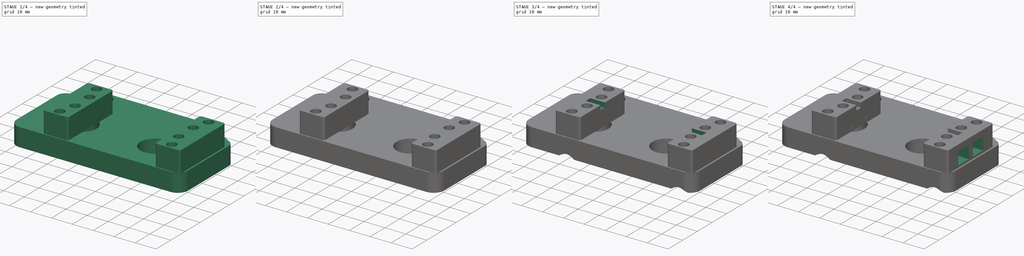
[diagram: build sequence overview — one tinted view per stage of 4, left to right]
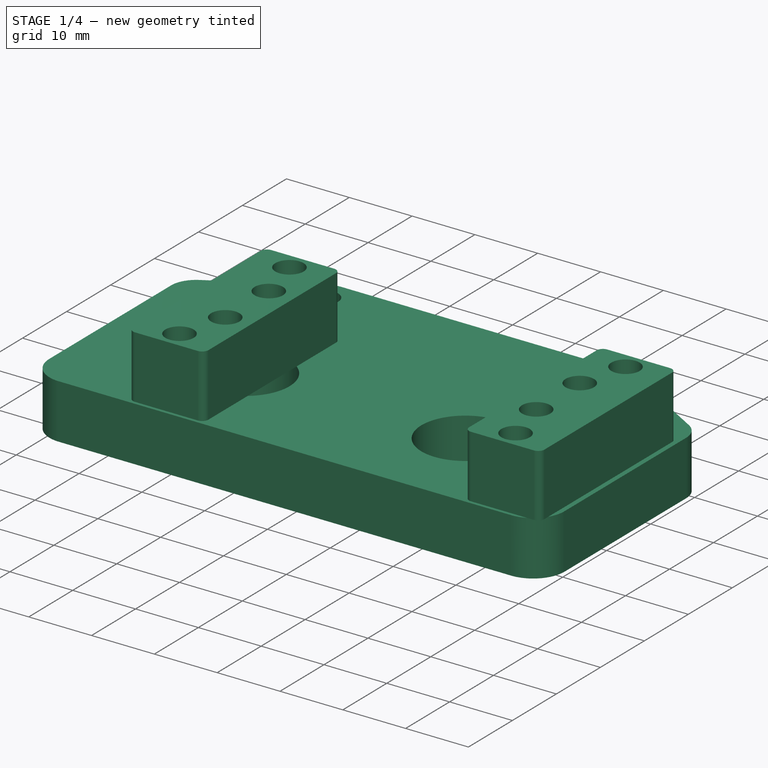
[diagram: stage 1 of 4 — iso view after this stage's code; geometry added in this stage tinted green]
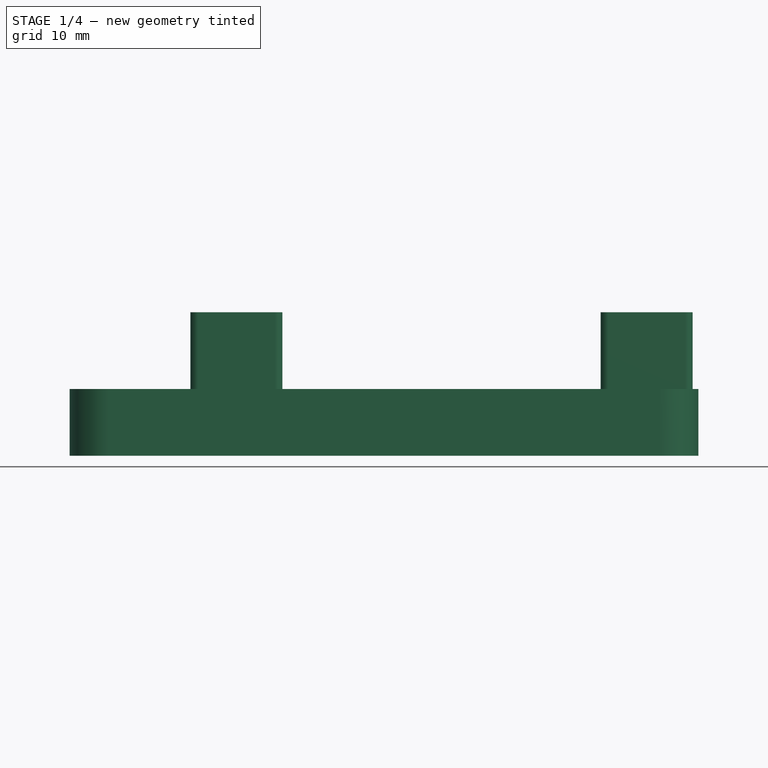
[diagram: stage 1 of 4 — front view after this stage's code; geometry added in this stage tinted green]
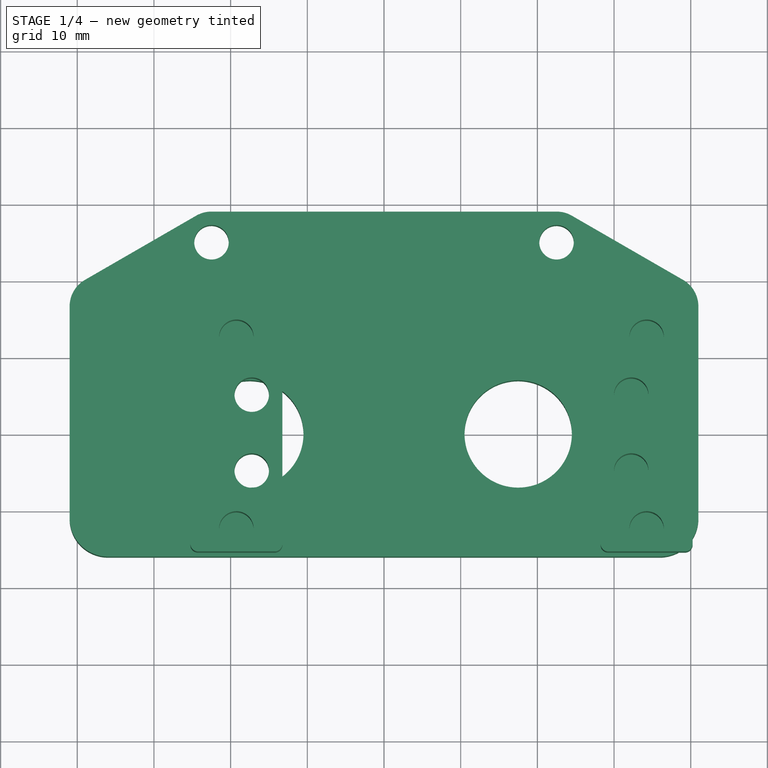
[diagram: stage 1 of 4 — top view after this stage's code; geometry added in this stage tinted green]
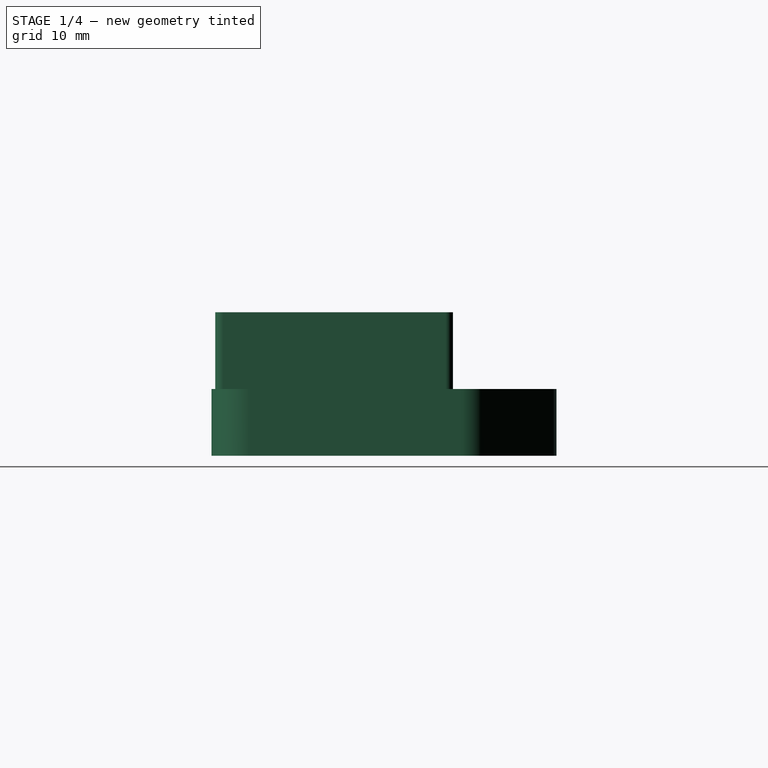
[diagram: stage 1 of 4 — right view after this stage's code; geometry added in this stage tinted green]
FCSTD DOCUMENT  (FreeCAD 1.1R39741 (Git))
Label: claw-base
License: All rights reserved
LicenseURL: https://en.wikipedia.org/wiki/All_rights_reserved
objects: Part::Feature×5, Sketcher::SketchObject×4, PartDesign::Pocket×4, PartDesign::Pad×2, PartDesign::Mirrored×2, PartDesign::CoordinateSystem×1, Part::Compound×1, Part::Scale×1, PartDesign::Hole×1, PartDesign::Plane×1, PartDesign::Body×1, App::Point×1
note: 43 computed .brp shape members not serialized (recipe doc carries the construction recipe); baked Part::Feature solids carry a one-line shape summary decoded from their .brp
EXTERNAL_REF file=variables.FCStd obj=Spreadsheet

FEATURE [Sketcher::SketchObject] Sketch
  ArcFitTolerance = 1e-06
  ExternalTypes = [0]
  FullyConstrained = true
  MakeInternals = false
  MapMode = 5
  expr: Constraints[29] = variables#Spreadsheet.distance_bearing_holes_to_end
  expr: Constraints[35] = variables#Spreadsheet.claw_back_spacer_diameter
  expr: Constraints[36] = <<variables>>#Spreadsheet.claw_back_outer_spacer_holes_wing_angle
  expr: Constraints[4] = <<variables>>#Spreadsheet.claw_pincher_c2c
  expr: Constraints[52] = <<variables>>#Spreadsheet.claw_back_outer_spacer_holes_wing_angle
  sketch-geometry (25):
    g0: LineSegment StartX=41 StartY=-11 StartZ=0 EndX=41 EndY=16.6284 EndZ=0
    g1: GeomPoint X=41 Y=-16 Z=0
    g2: LineSegment [constr] StartX=-17.5 StartY=5.631e-13 StartZ=0 EndX=17.5 EndY=5.631e-13 EndZ=0
    g3: Circle CenterX=-17.5 CenterY=5.631e-13 CenterZ=0 NormalX=0 NormalY=0 NormalZ=1 AngleXU=0 Radius=7
    g4: Circle CenterX=17.5 CenterY=5.631e-13 CenterZ=0 NormalX=0 NormalY=0 NormalZ=1 AngleXU=0 Radius=7
    g5: LineSegment StartX=-39 StartY=20.0925 StartZ=0 EndX=-24.5 EndY=28.4641 EndZ=0
    g6: LineSegment StartX=-22.5 StartY=29 StartZ=0 EndX=22.5 EndY=29 EndZ=0
    g7: LineSegment StartX=24.5 StartY=28.4641 StartZ=0 EndX=39 EndY=20.0925 EndZ=0
    g8: LineSegment [constr] StartX=-22.5 StartY=25 StartZ=0 EndX=22.5 EndY=25 EndZ=0
    g9: GeomPoint [constr] X=-1.358e-13 Y=25 Z=0
    g10: Circle CenterX=-22.5 CenterY=25 CenterZ=0 NormalX=0 NormalY=0 NormalZ=1 AngleXU=0 Radius=2.25
    g11: Circle CenterX=22.5 CenterY=25 CenterZ=0 NormalX=0 NormalY=0 NormalZ=1 AngleXU=0 Radius=2.25
    g12: Circle [constr] CenterX=-22.5 CenterY=25 CenterZ=0 NormalX=0 NormalY=0 NormalZ=1 AngleXU=0 Radius=4
    g13: Circle [constr] CenterX=22.5 CenterY=25 CenterZ=0 NormalX=0 NormalY=0 NormalZ=1 AngleXU=0 Radius=4
    g14: ArcOfCircle CenterX=22.5 CenterY=25 CenterZ=0 NormalX=0 NormalY=0 NormalZ=1 AngleXU=0 Radius=4 StartAngle=1.0472 EndAngle=1.5708
    g15: ArcOfCircle CenterX=37 CenterY=16.6284 CenterZ=0 NormalX=0 NormalY=0 NormalZ=1 AngleXU=0 Radius=4 StartAngle=2.005e-13 EndAngle=1.0472
    g16: ArcOfCircle CenterX=-22.5 CenterY=25 CenterZ=0 NormalX=0 NormalY=0 NormalZ=1 AngleXU=0 Radius=4 StartAngle=1.5708 EndAngle=2.0944
    g17: LineSegment StartX=36 StartY=-16 StartZ=0 EndX=-36 EndY=-16 EndZ=0
    g18: LineSegment StartX=-41 StartY=16.6284 StartZ=0 EndX=-41 EndY=-11 EndZ=0
    g19: ArcOfCircle CenterX=-36 CenterY=-11 CenterZ=0 NormalX=0 NormalY=0 NormalZ=1 AngleXU=0 Radius=5 StartAngle=3.14159 EndAngle=4.71239
    g20: GeomPoint [constr] X=-41 Y=-16 Z=0
    g21: ArcOfCircle CenterX=36 CenterY=-11 CenterZ=0 NormalX=0 NormalY=0 NormalZ=1 AngleXU=0 Radius=5 StartAngle=4.71239 EndAngle=6.28319
    g22: GeomPoint [constr] X=41 Y=-16 Z=0
    g23: ArcOfCircle CenterX=-37 CenterY=16.6284 CenterZ=0 NormalX=0 NormalY=0 NormalZ=1 AngleXU=0 Radius=4 StartAngle=2.0944 EndAngle=3.14159
    g24: GeomPoint [constr] X=-41 Y=18.9378 Z=0
  constraints (58):
    c: Vertical(g0)
    c: Vertical(g22,g1)
    c: Horizontal(g22,g1)
    c: Horizontal(g2)
    c: DistanceX(g2,g2) = 35
    c: Symmetric(g2,g2,g-1)
    c: Diameter(g3) = 14
    c: Coincident(g3,g2)
    c: Coincident(g4,g2)
    c: Equal(g4,g3)
    c: Horizontal(g6)
    c: Horizontal(g8)
    c: DistanceX(g8,g8) = 45
    c: Distance(g2,g8) = 25
    c: Symmetric(g8,g8,g9)
    c: PointOnObject(g9,g-2)
    c: Coincident(g11,g8)
    c: Equal(g10,g11)
    c: Tangent(g6,g12) = 1.5708
    c: Tangent(g5,g12) = 1.5708
    c: Coincident(g13,g8)
    c: Equal(g13,g12)
    c: Equal(g14,g13)
    c: Coincident(g7,g14)
    c: Tangent(g7,g13) = 1.5708
    c: Coincident(g16,g5)
    c: Coincident(g16,g6)
    c: Equal(g16,g12)
    c: Diameter(g10) = 4.5
    c: Distance(g22,g2) = 16
    c: Vertical(g18)
    c: Horizontal(g17)
    c: Coincident(g16,g10)
    c: Coincident(g8,g12)
    c: Equal(g15,g14)
    c: Diameter(g12) = 8
    c: Angle(g5,g8) = 2.61799
    c: PointOnObject(g20,g17)
    c: PointOnObject(g20,g18)
    c: Tangent(g17,g19) = 1.5708
    c: Tangent(g18,g19) = -1.5708
    c: PointOnObject(g22,g0)
    c: Tangent(g0,g21) = -1.5708
    c: Equal(g19,g21)
    c: Radius(g21) = 5
    c: PointOnObject(g24,g5)
    c: PointOnObject(g24,g18)
    c: Tangent(g5,g23) = 1.5708
    c: Tangent(g18,g23) = -1.5708
    c: Equal(g23,g15)
    c: Tangent(g15,g0) = -1.5708
    c: Tangent(g7,g15) = 1.5708
    c: Angle(g8,g7) = 2.61799
    c: Tangent(g21,g17) = 1.5708
    c: Equal(g5,g7)
    c: Horizontal(g1,g17)
    c: Distance(g18,g0) = 82
    c: Tangent(g6,g14) = 1.5708
FEATURE [PartDesign::Pad] Pad
  Direction = (0,0,1)
  Length = 8.7
  Length2 = 10
  Profile = -> Sketch
  ReferenceAxis = -> Sketch [N_Axis]
  Refine = true
  Suppressed = false
  Type = 0
  expr: Length = <<variables>>#Spreadsheet.claw_base_thickness
FEATURE [Sketcher::SketchObject] Sketch001
  ArcFitTolerance = 1e-06
  ExternalGeometry = -> [Pad]
  ExternalTypes = [0]
  FullyConstrained = true
  MakeInternals = false
  MapMode = 5
  Placement = pos=(0,0,8.7) rot=(0,0,1;0rad)
  expr: Constraints[20] = variables#Spreadsheet.servo_holes_to_spline
  expr: Constraints[8] = variables#Spreadsheet.servo_holes_horiz_dist
  expr: Constraints[9] = variables#Spreadsheet.servo_holes_vert_dist
  sketch-geometry (48):
    g0: LineSegment [constr] StartX=-17.25 StartY=-4.95 StartZ=0 EndX=32.25 EndY=-4.95 EndZ=0
    g1: LineSegment [constr] StartX=32.25 StartY=-4.95 StartZ=0 EndX=32.25 EndY=4.95 EndZ=0
    g2: LineSegment [constr] StartX=32.25 StartY=4.95 StartZ=0 EndX=-17.25 EndY=4.95 EndZ=0
    g3: LineSegment [constr] StartX=-17.25 StartY=4.95 StartZ=0 EndX=-17.25 EndY=-4.95 EndZ=0
    g4: Circle CenterX=32.25 CenterY=4.95 CenterZ=0 NormalX=0 NormalY=0 NormalZ=1 AngleXU=0 Radius=2.25
    g5: Circle CenterX=32.25 CenterY=-4.95 CenterZ=0 NormalX=0 NormalY=0 NormalZ=1 AngleXU=0 Radius=2.25
    g6: Circle CenterX=-17.25 CenterY=-4.95 CenterZ=0 NormalX=0 NormalY=0 NormalZ=1 AngleXU=0 Radius=2.25
    g7: Circle CenterX=-17.25 CenterY=4.95 CenterZ=0 NormalX=0 NormalY=0 NormalZ=1 AngleXU=0 Radius=2.25
    g8: GeomPoint X=32.25 Y=0 Z=0
    g9: GeomPoint X=17.5 Y=7.65474e-11 Z=0
    g10: LineSegment StartX=-14.25 StartY=15.5 StartZ=0 EndX=-24.25 EndY=15.5 EndZ=0
    g11: LineSegment StartX=-25.25 StartY=14.5 StartZ=0 EndX=-25.25 EndY=-14.5 EndZ=0
    g12: LineSegment StartX=-24.25 StartY=-15.5 StartZ=0 EndX=-14.25 EndY=-15.5 EndZ=0
    g13: LineSegment StartX=-13.25 StartY=-14.5 StartZ=0 EndX=-13.25 EndY=14.5 EndZ=0
    g14: LineSegment [constr] StartX=-17.25 StartY=0 StartZ=0 EndX=-13.25 EndY=0 EndZ=0
    g15: LineSegment StartX=29.25 StartY=-15.5 StartZ=0 EndX=39.25 EndY=-15.5 EndZ=0
    g16: LineSegment StartX=40.25 StartY=-14.5 StartZ=0 EndX=40.25 EndY=14.5 EndZ=0
    g17: LineSegment StartX=39.25 StartY=15.5 StartZ=0 EndX=29.25 EndY=15.5 EndZ=0
    g18: GeomPoint X=28.25 Y=0 Z=0
    g19: LineSegment [constr] StartX=28.25 StartY=0 StartZ=0 EndX=32.25 EndY=0 EndZ=0
    g20: LineSegment StartX=28.25 StartY=14.5 StartZ=0 EndX=28.25 EndY=-14.5 EndZ=0
    g21: GeomPoint X=7.5 Y=0 Z=0
    g22: ArcOfCircle CenterX=-24.25 CenterY=14.5 CenterZ=0 NormalX=0 NormalY=0 NormalZ=1 AngleXU=0 Radius=1 StartAngle=1.5708 EndAngle=3.14159
    g23: GeomPoint [constr] X=-25.25 Y=15.5 Z=0
    g24: ArcOfCircle CenterX=-14.25 CenterY=14.5 CenterZ=0 NormalX=0 NormalY=0 NormalZ=1 AngleXU=0 Radius=1 StartAngle=8e-16 EndAngle=1.5708
    g25: GeomPoint [constr] X=-13.25 Y=15.5 Z=0
    g26: ArcOfCircle CenterX=-14.25 CenterY=-14.5 CenterZ=0 NormalX=0 NormalY=0 NormalZ=1 AngleXU=0 Radius=1 StartAngle=4.71239 EndAngle=6.28319
    g27: GeomPoint [constr] X=-13.25 Y=-15.5 Z=0
    g28: ArcOfCircle CenterX=-24.25 CenterY=-14.5 CenterZ=0 NormalX=0 NormalY=0 NormalZ=1 AngleXU=0 Radius=1 StartAngle=3.14159 EndAngle=4.71239
    g29: GeomPoint [constr] X=-25.25 Y=-15.5 Z=0
    g30: ArcOfCircle CenterX=29.25 CenterY=14.5 CenterZ=0 NormalX=0 NormalY=0 NormalZ=1 AngleXU=0 Radius=1 StartAngle=1.5708 EndAngle=3.14159
    g31: GeomPoint [constr] X=28.25 Y=15.5 Z=0
    g32: ArcOfCircle CenterX=39.25 CenterY=14.5 CenterZ=0 NormalX=0 NormalY=0 NormalZ=1 AngleXU=0 Radius=1 StartAngle=-9e-16 EndAngle=1.5708
    g33: GeomPoint [constr] X=40.25 Y=15.5 Z=0
    g34: ArcOfCircle CenterX=39.25 CenterY=-14.5 CenterZ=0 NormalX=0 NormalY=0 NormalZ=1 AngleXU=0 Radius=1 StartAngle=4.71239 EndAngle=6.28319
    g35: GeomPoint [constr] X=40.25 Y=-15.5 Z=0
    g36: ArcOfCircle CenterX=29.25 CenterY=-14.5 CenterZ=0 NormalX=0 NormalY=0 NormalZ=1 AngleXU=0 Radius=1 StartAngle=3.14159 EndAngle=4.71239
    g37: GeomPoint [constr] X=28.25 Y=-15.5 Z=0
    g38: GeomPoint X=-25.25 Y=-1.3e-15 Z=0
    g39: GeomPoint X=-19.25 Y=-7e-16 Z=0
    g40: Circle CenterX=-19.25 CenterY=-12.5 CenterZ=0 NormalX=0 NormalY=0 NormalZ=1 AngleXU=0 Radius=2.25
    g41: Circle CenterX=-19.25 CenterY=12.5 CenterZ=0 NormalX=0 NormalY=0 NormalZ=1 AngleXU=0 Radius=2.25
    g42: LineSegment [constr] StartX=-19.25 StartY=-12.5 StartZ=0 EndX=-19.25 EndY=-15.5 EndZ=0
    g43: LineSegment [constr] StartX=-19.25 StartY=12.5 StartZ=0 EndX=-19.25 EndY=15.5 EndZ=0
    g44: LineSegment [constr] StartX=34.25 StartY=-15.5 StartZ=0 EndX=34.25 EndY=-12.5 EndZ=0
    g45: LineSegment [constr] StartX=34.25 StartY=15.5 StartZ=0 EndX=34.25 EndY=12.5 EndZ=0
    g46: Circle CenterX=34.25 CenterY=-12.5 CenterZ=0 NormalX=0 NormalY=0 NormalZ=1 AngleXU=0 Radius=2.25
    g47: Circle CenterX=34.25 CenterY=12.5 CenterZ=0 NormalX=0 NormalY=0 NormalZ=1 AngleXU=0 Radius=2.25
  constraints (109):
    c: Coincident(g0,g1)
    c: Coincident(g1,g2)
    c: Coincident(g2,g3)
    c: Coincident(g3,g0)
    c: Horizontal(g0)
    c: Horizontal(g2)
    c: Vertical(g1)
    c: Vertical(g3)
    c: DistanceX(g2,g2) = 49.5
    c: DistanceY(g1,g1) = 9.9
    c: Coincident(g4,g1)
    c: Coincident(g5,g0)
    c: Coincident(g6,g0)
    c: Diameter(g7) = 4.5
    c: Coincident(g7,g2)
    c: Equal(g7,g6)
    c: Equal(g6,g5)
    c: Equal(g5,g4)
    c: Symmetric(g1,g1,g8)
    c: PointOnObject(g8,g-1)
    c: DistanceX(g9,g8) = 14.75
    c: Horizontal(g10)
    c: Horizontal(g12)
    c: Vertical(g11)
    c: Vertical(g13)
    c: Distance(g23,g25) = 12
    c: Distance(g25,g27) = 31
    c: Symmetric(g27,g25,g14)
    c: Horizontal(g14)
    c: Vertical(g16)
    c: Horizontal(g15)
    c: Horizontal(g17)
    c: Coincident(g19,g8)
    c: Coincident(g18,g19)
    c: Horizontal(g19)
    c: Equal(g19,g14)
    c: Vertical(g20)
    c: Symmetric(g3,g3,g14)
    c: DistanceX(g14,g14) = 4
    c: Symmetric(g31,g37,g18)
    c: Symmetric(g14,g18,g21)
    c: PointOnObject(g23,g10)
    c: PointOnObject(g23,g11)
    c: Tangent(g10,g22) = -1.5708
    c: Tangent(g11,g22) = -1.5708
    c: PointOnObject(g25,g10)
    c: PointOnObject(g25,g13)
    c: Tangent(g10,g24) = -1.5708
    c: Tangent(g13,g24) = -1.5708
    c: PointOnObject(g27,g12)
    c: PointOnObject(g27,g13)
    c: Tangent(g12,g26) = -1.5708
    c: Tangent(g13,g26) = -1.5708
    c: PointOnObject(g29,g11)
    c: PointOnObject(g29,g12)
    c: Tangent(g11,g28) = -1.5708
    c: Tangent(g12,g28) = -1.5708
    c: Equal(g22,g24)
    c: Equal(g24,g26)
    c: Equal(g26,g28)
    c: Radius(g28) = 1
    c: Horizontal(g27,g37)
    c: PointOnObject(g31,g17)
    c: PointOnObject(g31,g20)
    c: Tangent(g17,g30) = -1.5708
    c: Tangent(g20,g30) = -1.5708
    c: PointOnObject(g33,g16)
    c: PointOnObject(g33,g17)
    c: Tangent(g16,g32) = -1.5708
    c: Tangent(g17,g32) = -1.5708
    c: PointOnObject(g35,g15)
    c: PointOnObject(g35,g16)
    c: Tangent(g15,g34) = -1.5708
    c: Tangent(g16,g34) = -1.5708
    c: PointOnObject(g37,g15)
    c: PointOnObject(g37,g20)
    c: Tangent(g15,g36) = -1.5708
    c: Tangent(g20,g36) = -1.5708
    c: Equal(g36,g34)
    c: Equal(g34,g32)
    c: Equal(g32,g30)
    c: Equal(g30,g24)
    c: Equal(g15,g12)
    c: Symmetric(g11,g11,g38)
    c: Symmetric(g38,g14,g39)
    c: Vertical(g41,g39)
    c: Vertical(g39,g40)
    c: Equal(g40,g6)
    c: Equal(g41,g7)
    c: Coincident(g42,g40)
    c: Symmetric(g12,g12,g42)
    c: DistanceY(g42,g42) = 3
    c: Coincident(g43,g41)
    c: Symmetric(g10,g10,g43)
    c: Equal(g43,g42)
    c: Symmetric(g15,g15,g44)
    c: Symmetric(g17,g17,g45)
    c: Vertical(g45)
    c: Vertical(g44)
    c: Equal(g44,g45)
    c: Equal(g42,g44)
    c: Coincident(g46,g44)
    c: Coincident(g47,g45)
    c: Equal(g47,g4)
    c: Equal(g4,g46)
    c: DistanceY(g44,g-1) = 12.5  'structure_holes_y'
    c: DistanceX(g40,g44) = 53.5  'structure_holes_c2c'
    c: DistanceX(g41,g-1) = 19.25  'structure_hole_x'
    c: Coincident(g9,g-3)
FEATURE [PartDesign::Pad] Pad001
  BaseFeature = -> Pad
  Direction = (0,0,1)
  Length = 10
  Length2 = 10
  Profile = -> Sketch001
  ReferenceAxis = -> Sketch001 [N_Axis]
  Refine = true
  Suppressed = false
  Type = 0
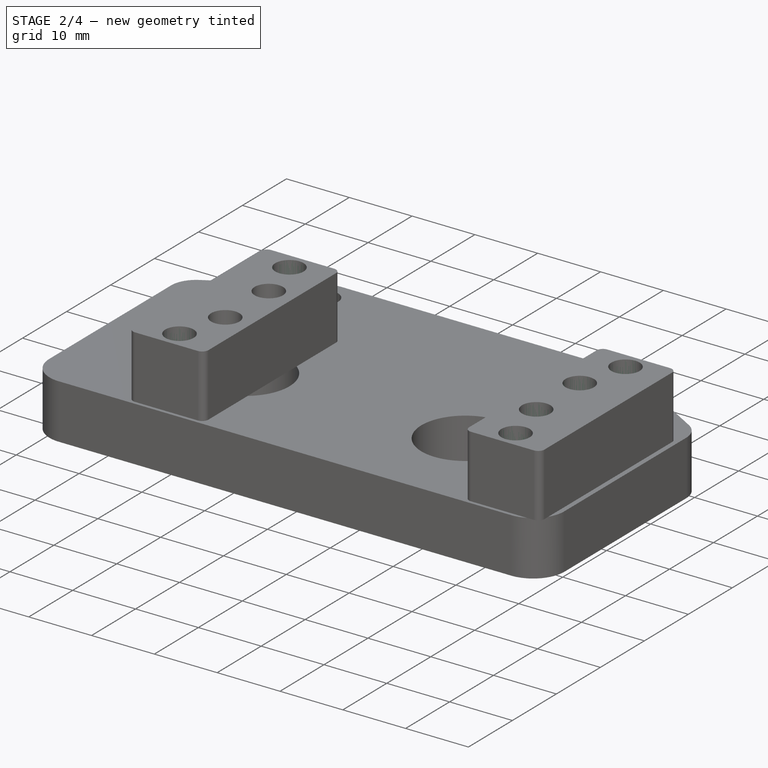
[diagram: stage 2 of 4 — iso view after this stage's code; geometry added in this stage tinted green]
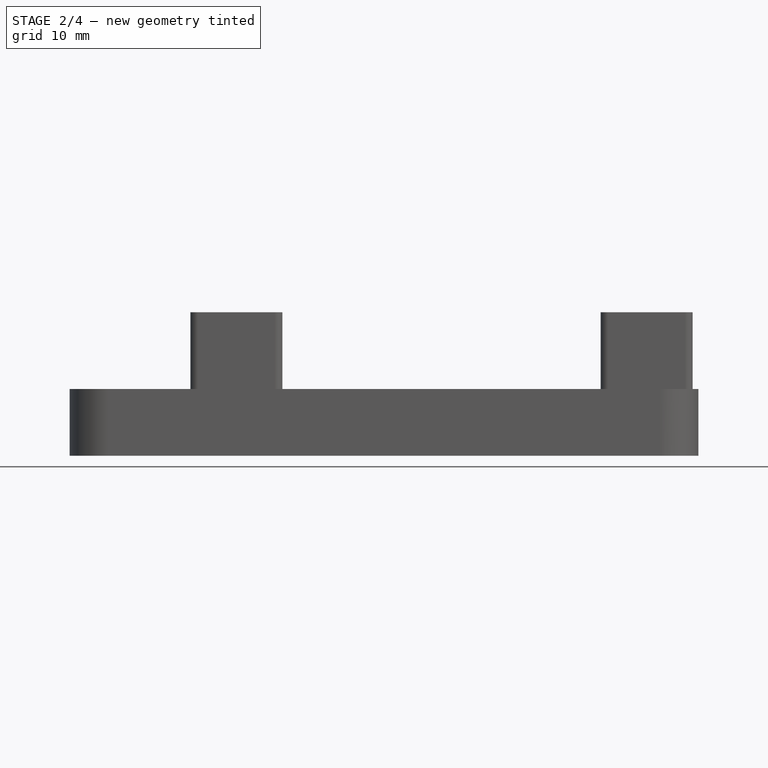
[diagram: stage 2 of 4 — front view after this stage's code; geometry added in this stage tinted green]
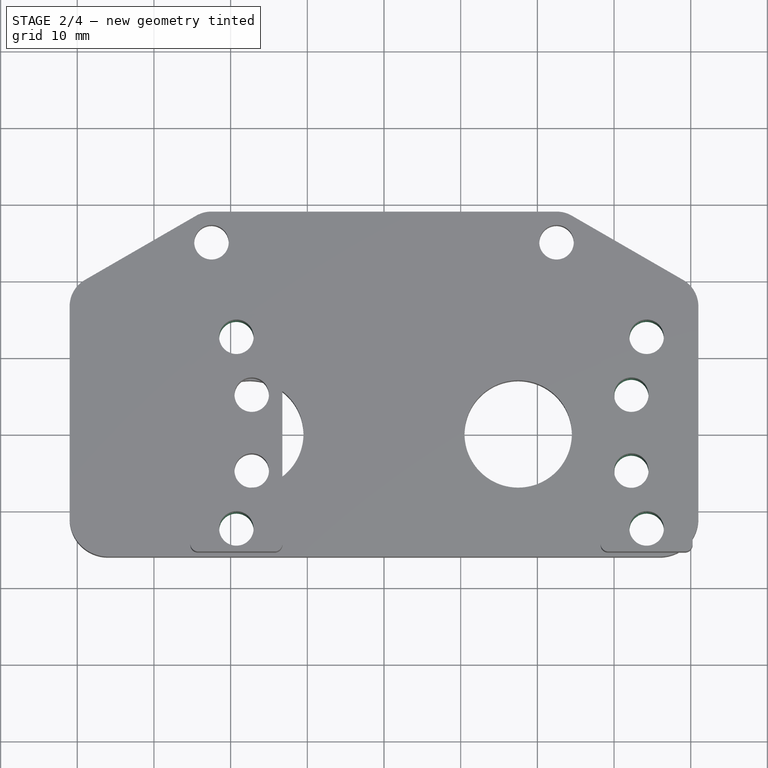
[diagram: stage 2 of 4 — top view after this stage's code; geometry added in this stage tinted green]
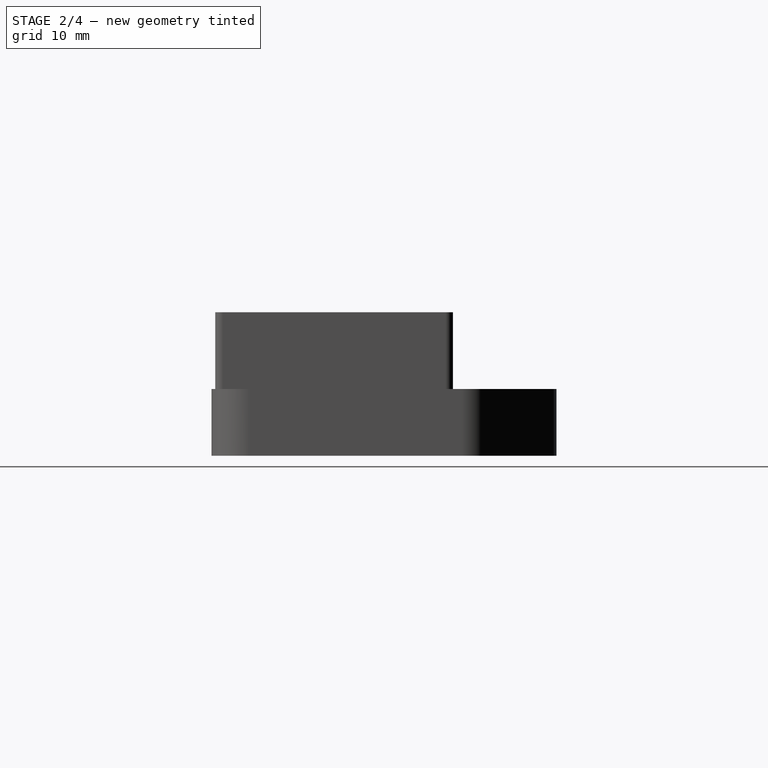
[diagram: stage 2 of 4 — right view after this stage's code; geometry added in this stage tinted green]
FEATURE [PartDesign::CoordinateSystem] Local_CS
  AttacherType = Attacher::AttachEngine3D
  MapMode = 11
  Placement = pos=(-25,25,0) rot=(0,0,1;1.5708rad)
FEATURE [Sketcher::SketchObject] Sketch002
  ArcFitTolerance = 1e-06
  AttachmentSupport = -> [Pad001]
  ExternalGeometry = -> [Pad001]
  ExternalTypes = [0]
  FullyConstrained = true
  MakeInternals = false
  MapMode = 5
  Placement = pos=(0,0,18.7) rot=(0,0,1;0rad)
  sketch-geometry (6):
    g0: GeomPoint X=28.25 Y=-7e-16 Z=0
    g1: LineSegment [constr] StartX=28.25 StartY=-7e-16 StartZ=0 EndX=35.25 EndY=0 EndZ=0
    g2: LineSegment StartX=28.25 StartY=1.5 StartZ=0 EndX=35.25 EndY=1.5 EndZ=0
    g3: LineSegment StartX=35.25 StartY=1.5 StartZ=0 EndX=35.25 EndY=-1.5 EndZ=0
    g4: LineSegment StartX=35.25 StartY=-1.5 StartZ=0 EndX=28.25 EndY=-1.5 EndZ=0
    g5: LineSegment StartX=28.25 StartY=-1.5 StartZ=0 EndX=28.25 EndY=1.5 EndZ=0
  constraints (14):
    c: Distance(g1) = 7
    c: Coincident(g1,g0)
    c: PointOnObject(g1,g-1)
    c: Horizontal(g2)
    c: Coincident(g2,g3)
    c: Vertical(g3)
    c: Coincident(g3,g4)
    c: Symmetric(g3,g3,g1)
    c: DistanceY(g3,g3) = 3
    c: Coincident(g5,g4)
    c: Coincident(g5,g2)
    c: Symmetric(g5,g5,g0)
    c: Symmetric(g-3,g-3,g0)
    c: Vertical(g5)
FEATURE [Part::Feature] path8
  shape: bbox 9.031 x 11.29 x 4e-07 mm, 1 faces, 0 solids (baked)
FEATURE [Part::Feature] path7
  shape: bbox 4.516 x 4.516 x 4e-07 mm, 1 faces, 0 solids (baked)
FEATURE [Part::Feature] path009
  shape: bbox 4.516 x 4.516 x 4e-07 mm, 1 faces, 0 solids (baked)
FEATURE [Part::Feature] path3
  shape: bbox 9.031 x 11.29 x 4e-07 mm, 1 faces, 0 solids (baked)
FEATURE [Part::Feature] path9
  shape: bbox 6.773 x 9.031 x 4e-07 mm, 1 faces, 0 solids (baked)
FEATURE [Part::Compound] Compound
  Links = -> [path8,path7,path009,path3,path9]
FEATURE [Part::Scale] Scale
  Base = -> Compound
  Uniform = true
  UniformScale = 1.25
  XScale = 1
  YScale = 1
  ZScale = 1
FEATURE [PartDesign::Pocket] Pocket010
  BaseFeature = -> Pad001
  Direction = (0,0,-1)
  Length = 0
  Length2 = 5
  Profile = -> Sketch001 [Edge2,Edge1]
  ReferenceAxis = -> Sketch001 [N_Axis]
  Refine = true
  Suppressed = false
  Type = 3
  UpToFace = -> Pad001 [Face4]
FEATURE [PartDesign::Pocket] Pocket009
  BaseFeature = -> Pocket010
  Direction = (0,0,-1)
  Length = 0
  Length2 = 5
  Profile = -> Sketch001 [Edge21,Edge23,Edge24,Edge22]
  ReferenceAxis = -> Sketch001 [N_Axis]
  Refine = true
  Suppressed = false
  Type = 3
  UpToFace = -> Pocket010 [Face4]
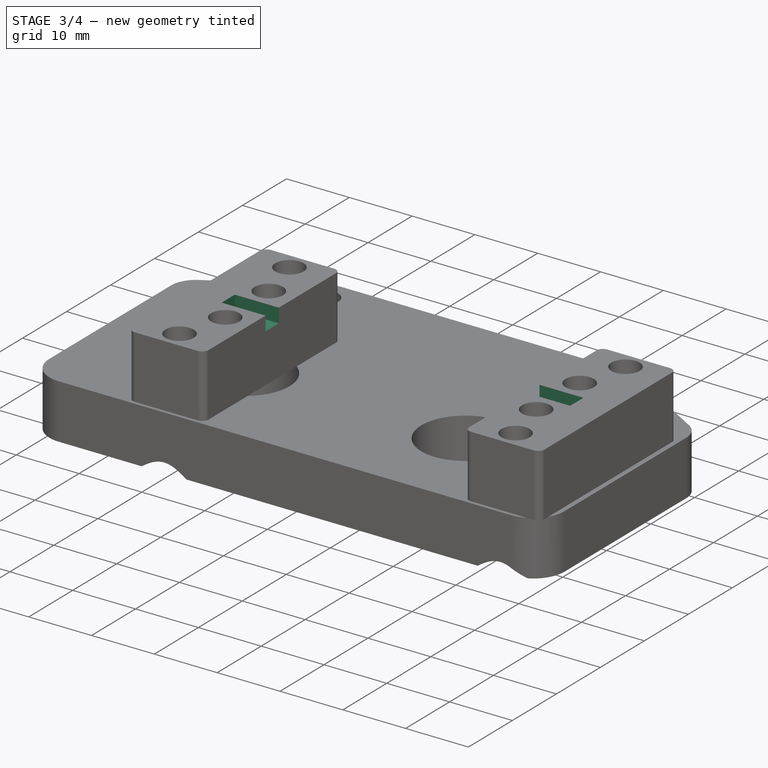
[diagram: stage 3 of 4 — iso view after this stage's code; geometry added in this stage tinted green]
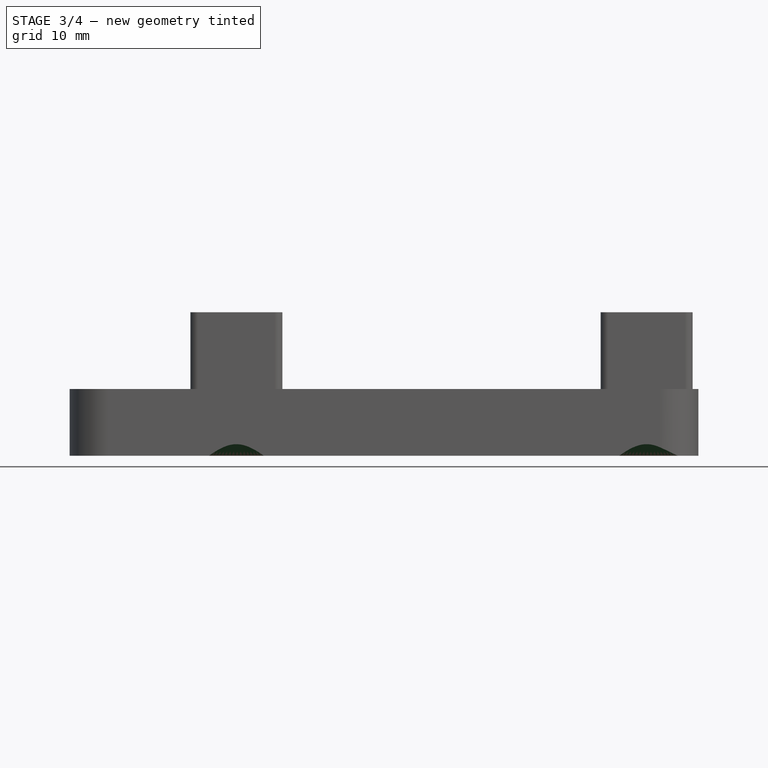
[diagram: stage 3 of 4 — front view after this stage's code; geometry added in this stage tinted green]
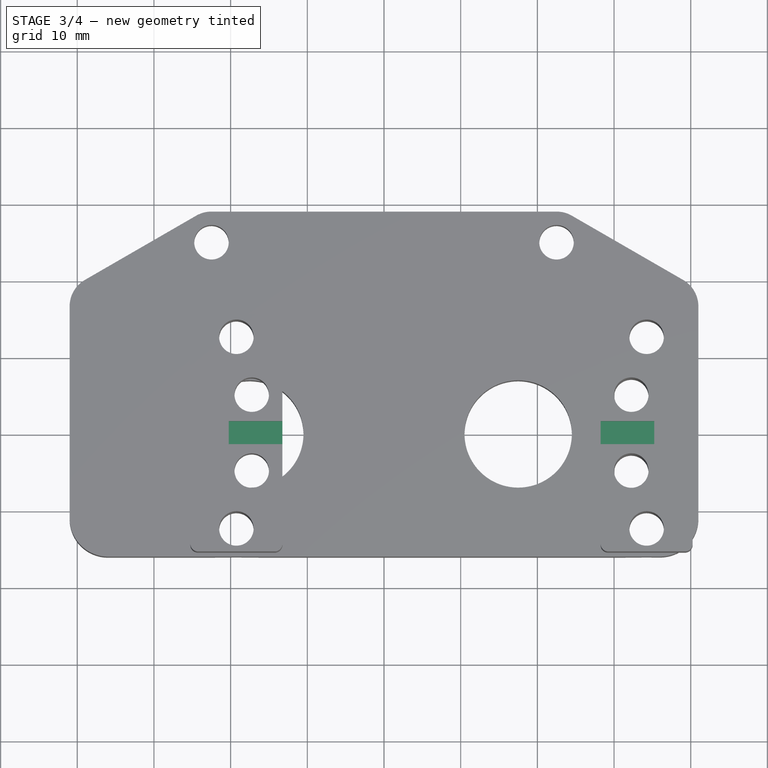
[diagram: stage 3 of 4 — top view after this stage's code; geometry added in this stage tinted green]
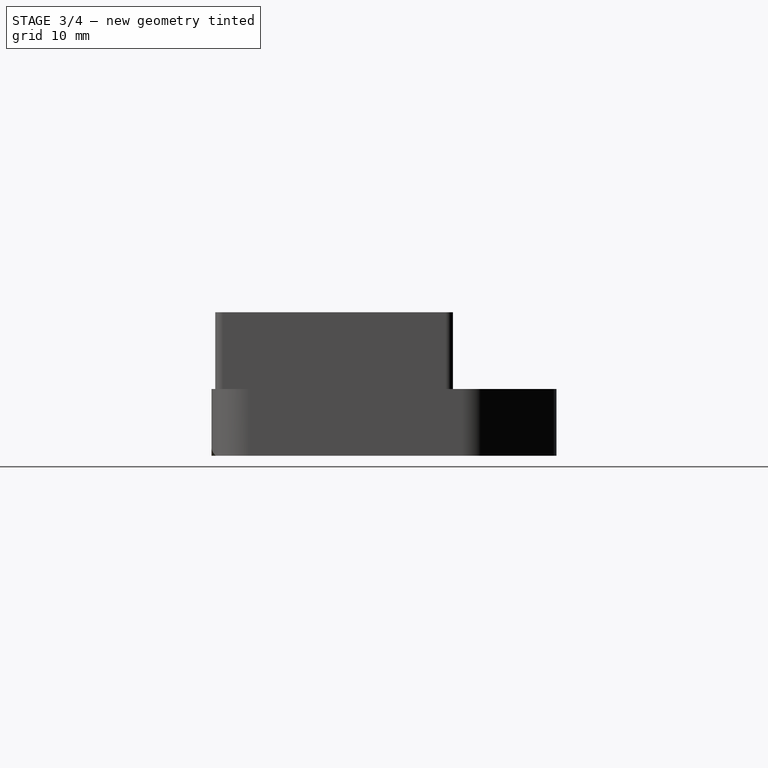
[diagram: stage 3 of 4 — right view after this stage's code; geometry added in this stage tinted green]
FEATURE [PartDesign::Hole] Hole
  BaseFeature = -> Pocket009
  CustomThreadClearance = 0
  Depth = 25
  DepthType = 0
  Diameter = 4.5
  DrillForDepth = false
  DrillPoint = 1
  DrillPointAngle = 118
  HoleCutCountersinkAngle = 90
  HoleCutCustomValues = false
  HoleCutDepth = 0.5
  HoleCutDiameter = 10
  HoleCutType = 2
  ModelThread = false
  Profile = -> Pocket009 [Edge28,Edge22,Edge24,Edge30]
  Refine = true
  Reversed = true
  Suppressed = false
  Tapered = false
  TaperedAngle = 90
  ThreadClass = 0
  ThreadDepth = 25
  ThreadDepthType = 0
  ThreadDirection = 0
  ThreadFit = 0
  ThreadSize = 11
  ThreadType = 1
  Threaded = false
  UseCustomThreadClearance = false
FEATURE [PartDesign::Pocket] Pocket
  BaseFeature = -> Hole
  Direction = (0,0,-1)
  Length = 2.25
  Length2 = 5
  Profile = -> Sketch002
  ReferenceAxis = -> Sketch002 [N_Axis]
  Refine = true
  Suppressed = false
  Type = 0
FEATURE [PartDesign::Plane] DatumPlane
  AttachmentSupport = -> [Sketch001,Pocket]
  Length = 64.3923
  MapMode = 6
  Placement = pos=(7.5,0,8.7) rot=(0.57735,0.57735,0.57735;2.0944rad)
  ResizeMode = 0
  Width = 60.3923
FEATURE [PartDesign::Mirrored] Mirrored
  BaseFeature = -> Pocket
  MirrorPlane = -> DatumPlane
  Originals = -> [Pocket]
  Refine = true
  Suppressed = false
  TransformMode = 0
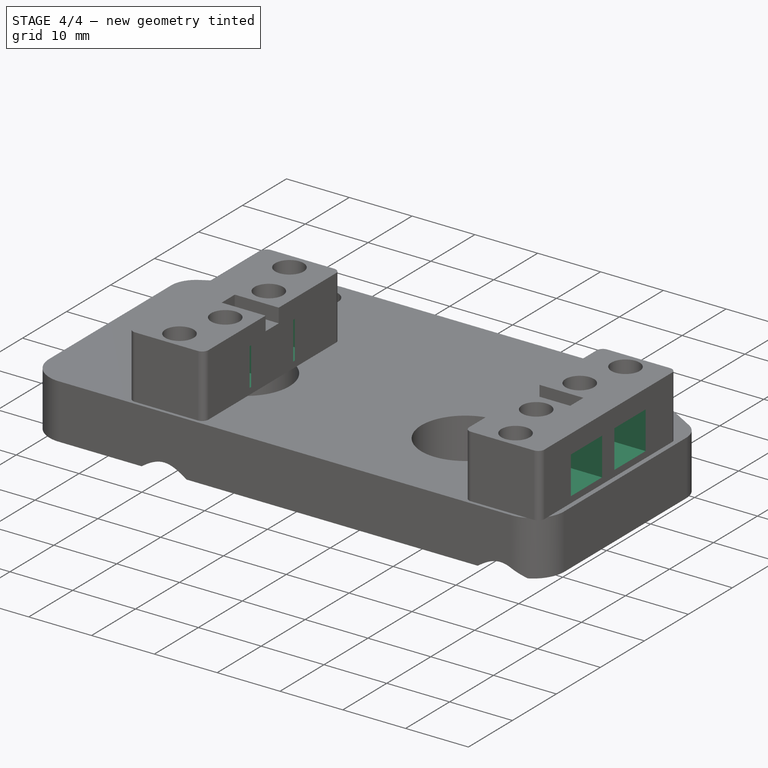
[diagram: stage 4 of 4 — iso view after this stage's code; geometry added in this stage tinted green]
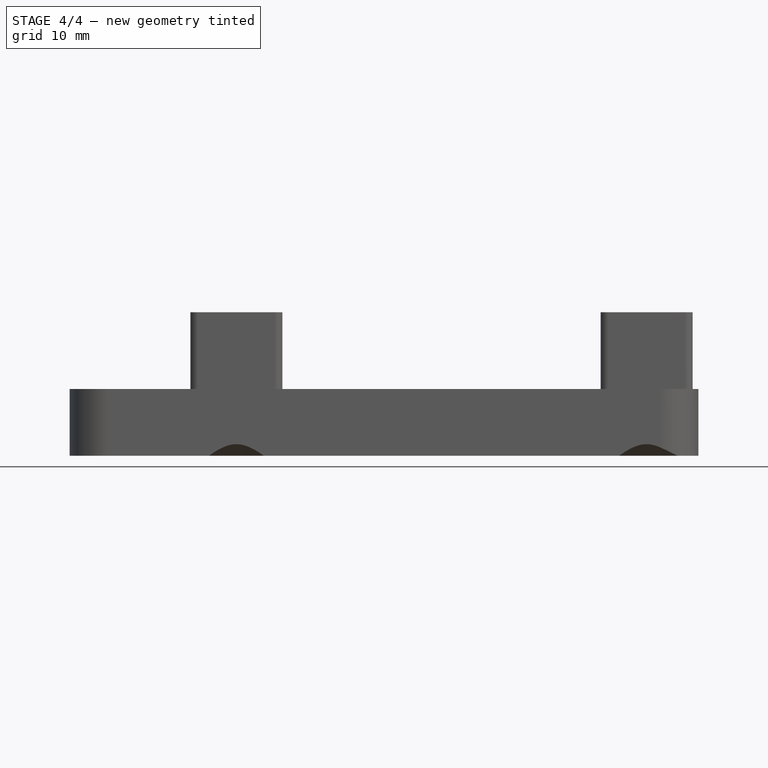
[diagram: stage 4 of 4 — front view after this stage's code; geometry added in this stage tinted green]
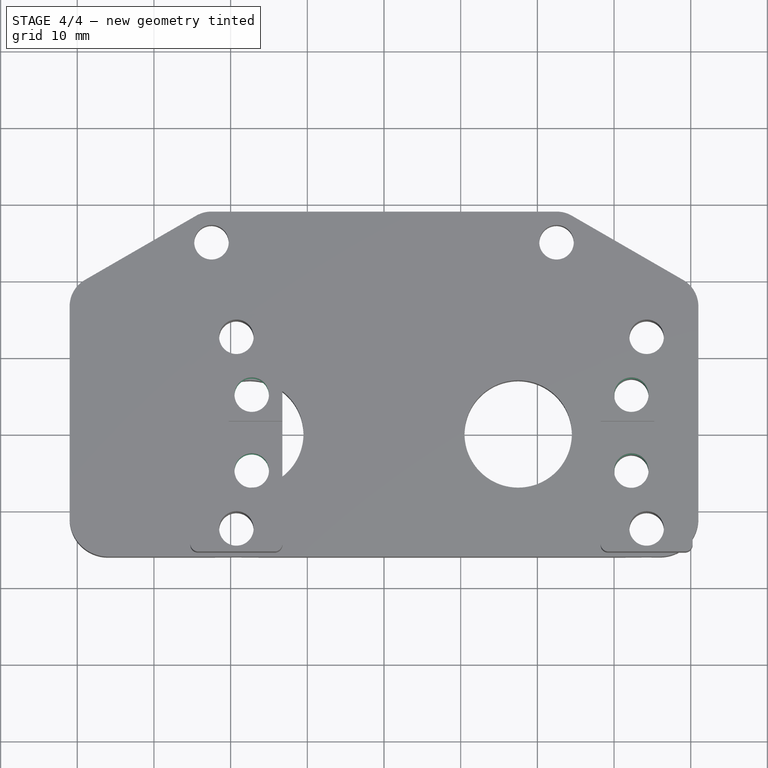
[diagram: stage 4 of 4 — top view after this stage's code; geometry added in this stage tinted green]
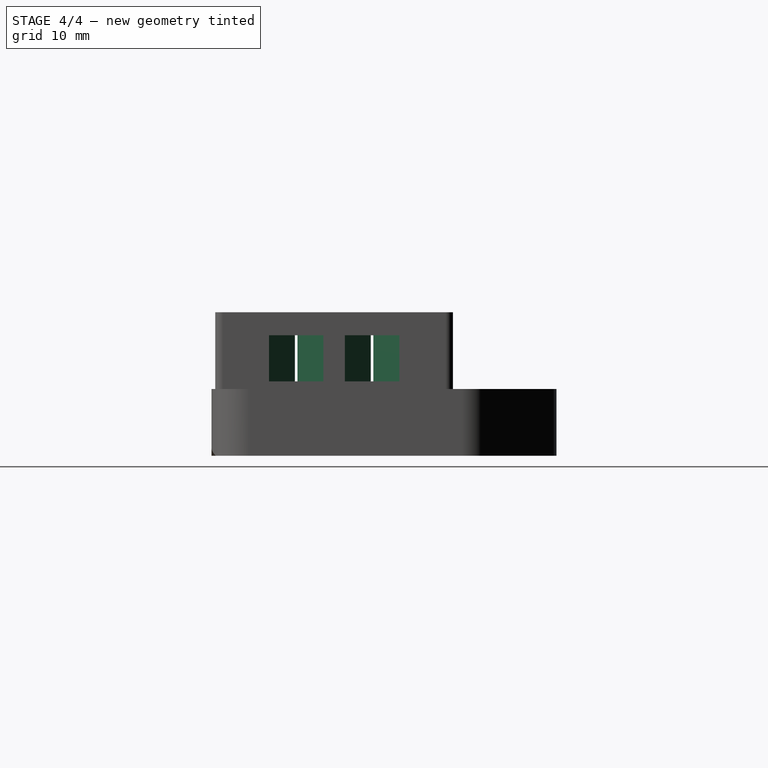
[diagram: stage 4 of 4 — right view after this stage's code; geometry added in this stage tinted green]
FEATURE [Sketcher::SketchObject] Sketch003
  ArcFitTolerance = 1e-06
  AttachmentOffset = pos=(0,0,-3) rot=(0,0,1;0rad)
  AttachmentSupport = -> [Mirrored]
  ExternalGeometry = -> [Mirrored,Sketch001]
  ExternalTypes = [0]
  FullyConstrained = true
  MakeInternals = false
  MapMode = 5
  Placement = pos=(0,0,15.7) rot=(0,0,1;0rad)
  sketch-geometry (22):
    g0: LineSegment StartX=-15.2004 StartY=-8.5 StartZ=0 EndX=-13.1508 EndY=-4.95 EndZ=0
    g1: LineSegment StartX=-13.1508 StartY=-4.95 StartZ=0 EndX=-15.2004 EndY=-1.4 EndZ=0
    g2: LineSegment StartX=-15.2004 StartY=-1.4 StartZ=0 EndX=-19.2996 EndY=-1.4 EndZ=0
    g3: LineSegment [constr] StartX=-19.2996 StartY=-1.4 StartZ=0 EndX=-21.3492 EndY=-4.95 EndZ=0
    g4: LineSegment [constr] StartX=-21.3492 StartY=-4.95 StartZ=0 EndX=-19.2996 EndY=-8.5 EndZ=0
    g5: LineSegment StartX=-19.2996 StartY=-8.5 StartZ=0 EndX=-15.2004 EndY=-8.5 EndZ=0
    g6: Circle [constr] CenterX=-17.25 CenterY=-4.95 CenterZ=0 NormalX=0 NormalY=0 NormalZ=1 AngleXU=0 Radius=4.09919
    g7: Circle [constr] CenterX=-17.25 CenterY=-4.95 CenterZ=0 NormalX=0 NormalY=0 NormalZ=1 AngleXU=0 Radius=3.55
    g8: LineSegment StartX=-15.2004 StartY=1.4 StartZ=0 EndX=-13.1508 EndY=4.95 EndZ=0
    g9: LineSegment StartX=-13.1508 StartY=4.95 StartZ=0 EndX=-15.2004 EndY=8.5 EndZ=0
    g10: LineSegment StartX=-15.2004 StartY=8.5 StartZ=0 EndX=-19.2996 EndY=8.5 EndZ=0
    g11: LineSegment [constr] StartX=-19.2996 StartY=8.5 StartZ=0 EndX=-21.3492 EndY=4.95 EndZ=0
    g12: LineSegment [constr] StartX=-21.3492 StartY=4.95 StartZ=0 EndX=-19.2996 EndY=1.4 EndZ=0
    g13: LineSegment StartX=-19.2996 StartY=1.4 StartZ=0 EndX=-15.2004 EndY=1.4 EndZ=0
    g14: Circle [constr] CenterX=-17.25 CenterY=4.95 CenterZ=0 NormalX=0 NormalY=0 NormalZ=1 AngleXU=0 Radius=4.09919
    g15: Circle [constr] CenterX=-17.25 CenterY=4.95 CenterZ=0 NormalX=0 NormalY=0 NormalZ=1 AngleXU=0 Radius=3.55
    g16: LineSegment StartX=-19.2996 StartY=-1.4 StartZ=0 EndX=-25.25 EndY=-1.4 EndZ=0
    g17: LineSegment StartX=-19.2996 StartY=-8.5 StartZ=0 EndX=-25.25 EndY=-8.5 EndZ=0
    g18: LineSegment StartX=-19.2996 StartY=1.4 StartZ=0 EndX=-25.25 EndY=1.4 EndZ=0
    g19: LineSegment StartX=-19.2996 StartY=8.5 StartZ=0 EndX=-25.25 EndY=8.5 EndZ=0
    g20: LineSegment StartX=-25.25 StartY=8.5 StartZ=0 EndX=-25.25 EndY=1.4 EndZ=0
    g21: LineSegment StartX=-25.25 StartY=-1.4 StartZ=0 EndX=-25.25 EndY=-8.5 EndZ=0
  constraints (52):
    c: Coincident(g0,g1)
    c: Coincident(g1,g2)
    c: Coincident(g2,g3)
    c: Coincident(g3,g4)
    c: Coincident(g4,g5)
    c: Coincident(g5,g0)
    c: Equal(g0, g1-g5) x5
    c: PointOnObject(g0,g6)
    c: PointOnObject(g1,g6)
    c: PointOnObject(g2,g6)
    c: PointOnObject(g3,g6)
    c: PointOnObject(g4,g6)
    c: PointOnObject(g5,g6)
    c: Coincident(g6,g-4)
    c: Horizontal(g5)
    c: Coincident(g7,g6)
    c: Tangent(g7,g1)
    c: Diameter(g7) = 7.1
    c: Coincident(g8,g9)
    c: Coincident(g9,g10)
    c: Coincident(g10,g11)
    c: Coincident(g11,g12)
    c: Coincident(g12,g13)
    c: Coincident(g13,g8)
    c: Equal(g8, g9-g13) x5
    c: PointOnObject(g8,g14)
    c: PointOnObject(g9,g14)
    c: PointOnObject(g10,g14)
    c: PointOnObject(g11,g14)
    c: PointOnObject(g12,g14)
    c: PointOnObject(g13,g14)
    c: Coincident(g14,g-3)
    c: Horizontal(g13)
    c: Coincident(g15,g14)
    c: Tangent(g15,g10)
    c: Equal(g15,g7)
    c: Coincident(g16,g2)
    c: Horizontal(g16)
    c: Coincident(g17,g4)
    c: Horizontal(g17)
    c: Coincident(g18,g12)
    c: Horizontal(g18)
    c: Coincident(g19,g10)
    c: Horizontal(g19)
    c: Coincident(g20,g19)
    c: Coincident(g20,g18)
    c: Coincident(g21,g16)
    c: Coincident(g21,g17)
    c: Vertical(g20)
    c: Vertical(g18,g16)
    c: Vertical(g21)
    c: PointOnObject(g16,g-5)
FEATURE [PartDesign::Pocket] Pocket001
  BaseFeature = -> Mirrored
  Direction = (0,0,-1)
  Length = 6
  Length2 = 5
  Profile = -> Sketch003
  ReferenceAxis = -> Sketch003 [N_Axis]
  Refine = true
  Suppressed = false
  Type = 0
FEATURE [PartDesign::Mirrored] Mirrored001
  BaseFeature = -> Pocket001
  MirrorPlane = -> DatumPlane
  Originals = -> [Pocket001]
  Refine = true
  Suppressed = false
  TransformMode = 0
FEATURE [PartDesign::Body] Body  label="Claw Base Body"
  AllowCompound = false
  Group = -> [Sketch,Pad,Sketch001,Pad001,Local_CS,Sketch002,Pocket010,Pocket009,Hole,Pocket,DatumPlane,Mirrored,Sketch003,Pocket001,Mirrored001]
  Origin = -> Origin
  Tip = -> Mirrored001
FEATURE [App::Point] Origin001  label="Origin"
  Role = Origin
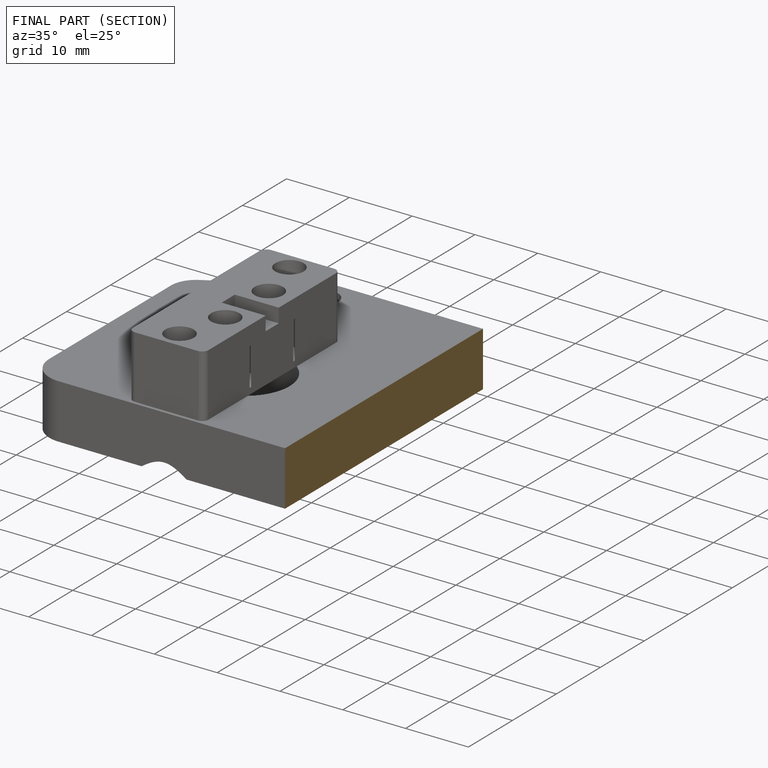
[diagram: finished part — half-section view (interior)]
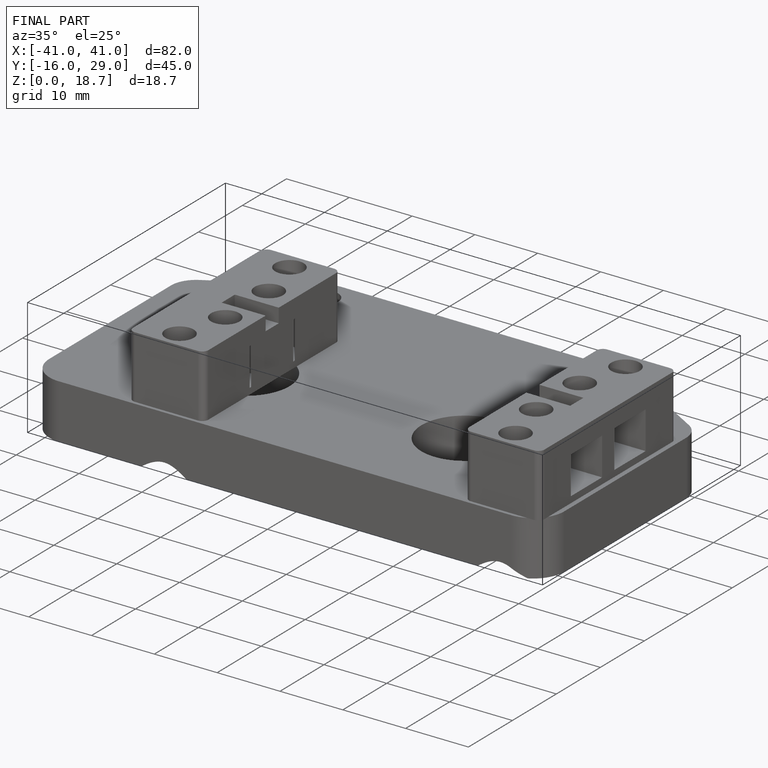
[diagram: finished part — iso view with bounding-box wireframe]
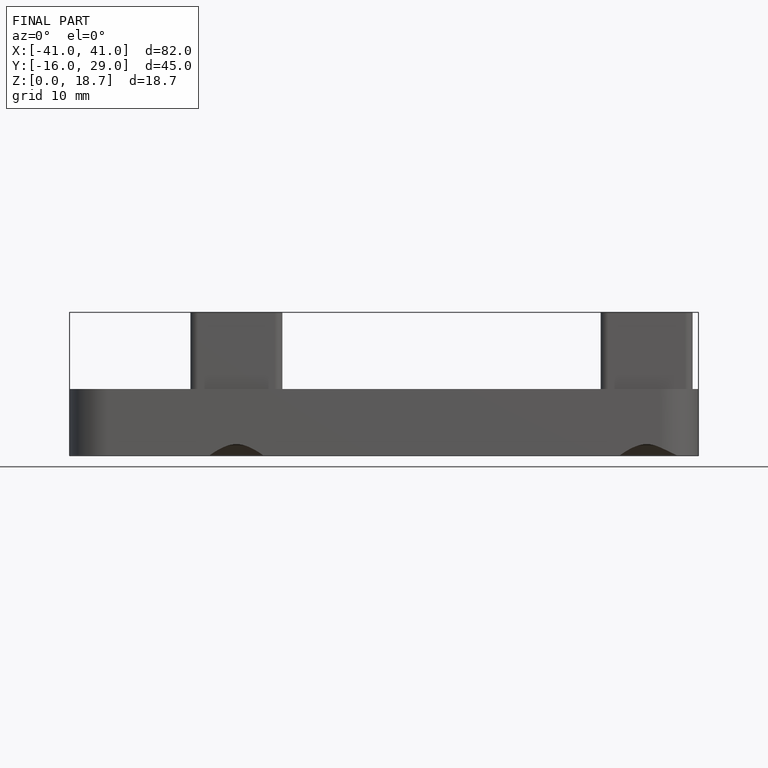
[diagram: finished part — front view with bounding-box wireframe]
